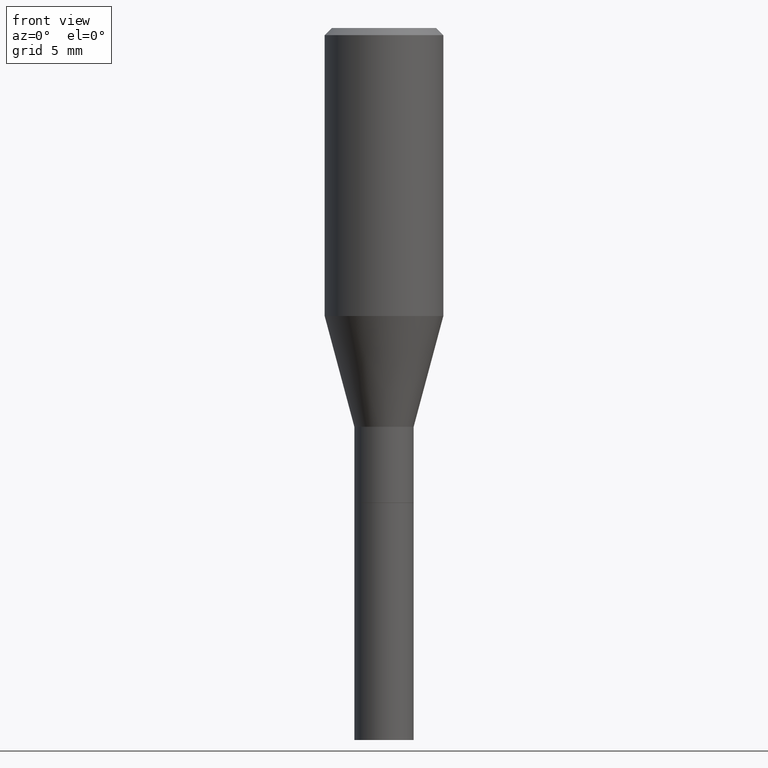
[diagram: clean part render]
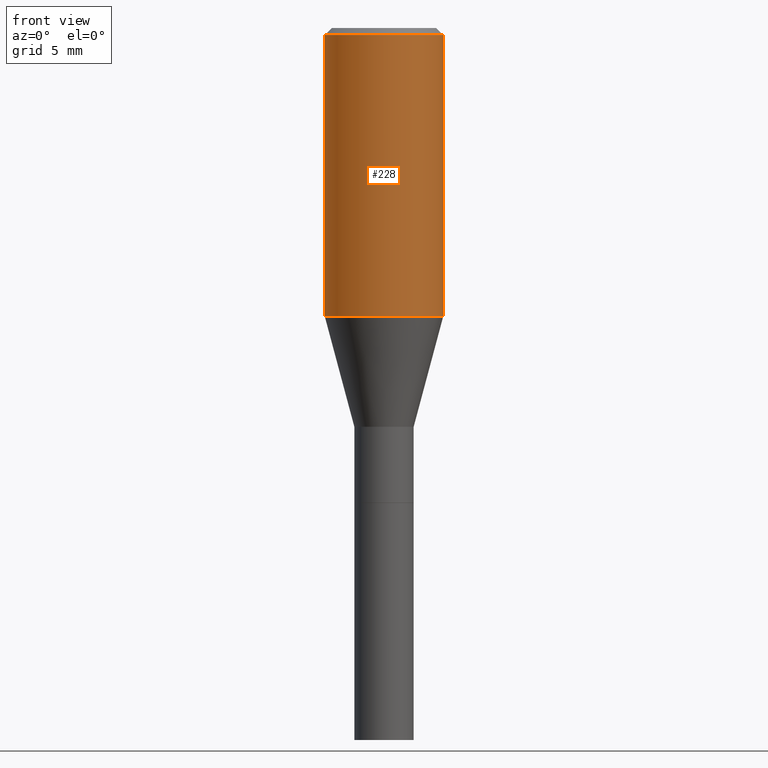
[diagram: same view with one face highlighted and labeled with its STEP entity id]
A machine part, front view. The second image highlights one B-rep face of the part: STEP entity #228.
In plain terms, the highlighted cylindrical surface (partial cylindrical patch) has radius 3.175 mm, axis along (-0, 0, 1).
Its self-contained STEP definition (entity closure, byte-faithful):
#11 = VERTEX_POINT ( 'NONE', #260 ) ;
#20 = CARTESIAN_POINT ( 'NONE',  ( -0.1250000000000000000, 8.881784197001252323E-16, -6.148668862818632227E-30 ) ) ;
#27 = DIRECTION ( 'NONE',  ( -2.445468806185136877E-29, 3.491481338843145188E-15, 1.000000000000000000 ) ) ;
#34 = DIRECTION ( 'NONE',  ( -2.445468806185136597E-29, 3.491481338843145583E-15, 1.000000000000000000 ) ) ;
#48 = CARTESIAN_POINT ( 'NONE',  ( 0.1250000000000000000, -9.252425547934304180E-16, -0.01499999999999999944 ) ) ;
#49 = VERTEX_POINT ( 'NONE', #48 ) ;
#59 = DIRECTION ( 'NONE',  ( 1.000000000000000000, -6.982962677686266711E-15, 0.000000000000000000 ) ) ;
#62 = CARTESIAN_POINT ( 'NONE',  ( 0.1250000000000000000, -8.728703347107833388E-16, 6.095220969744919741E-30 ) ) ;
#72 = FACE_OUTER_BOUND ( 'NONE', #199, .T. ) ;
#73 = ORIENTED_EDGE ( 'NONE', *, *, #129, .T. ) ;
#109 = DIRECTION ( 'NONE',  ( 1.000000000000000000, -6.982962677686266711E-15, 0.000000000000000000 ) ) ;
#116 = VECTOR ( 'NONE', #125, 39.37007874015748143 ) ;
#125 = DIRECTION ( 'NONE',  ( -2.445468806185136877E-29, 3.491481338843145188E-15, 1.000000000000000000 ) ) ;
#129 = EDGE_CURVE ( 'NONE', #414, #49, #168, .T. ) ;
#135 = CARTESIAN_POINT ( 'NONE',  ( 3.668203209277705088E-31, -5.237222008264718399E-17, -0.01499999999999999944 ) ) ;
#139 = CIRCLE ( 'NONE', #343, 0.1250000000000000000 ) ;
#168 = LINE ( 'NONE', #62, #171 ) ;
#171 = VECTOR ( 'NONE', #27, 39.37007874015748143 ) ;
#179 = EDGE_CURVE ( 'NONE', #321, #414, #139, .T. ) ;
#185 = AXIS2_PLACEMENT_3D ( 'NONE', #135, #411, #59 ) ;
#199 = EDGE_LOOP ( 'NONE', ( #464, #313, #73, #398 ) ) ;
#205 = LINE ( 'NONE', #20, #116 ) ;
#207 = CARTESIAN_POINT ( 'NONE',  ( 0.1250000000000000000, -2.991315549948951109E-15, -0.6067468245269458382 ) ) ;
#214 = CARTESIAN_POINT ( 'NONE',  ( 1.483780432632532673E-29, -2.118445215238167770E-15, -0.6067468245269458382 ) ) ;
#215 = CARTESIAN_POINT ( 'NONE',  ( 0.000000000000000000, 0.000000000000000000, 0.000000000000000000 ) ) ;
#216 = DIRECTION ( 'NONE',  ( -2.445468806185136597E-29, 3.491481338843145583E-15, 1.000000000000000000 ) ) ;
#228 = ADVANCED_FACE ( 'NONE', ( #72 ), #380, .T. ) ;
#236 = CARTESIAN_POINT ( 'NONE',  ( -0.1250000000000000000, -1.230266795538042735E-15, -0.6067468245269458382 ) ) ;
#260 = CARTESIAN_POINT ( 'NONE',  ( -0.1250000000000000000, -1.972302979602822908E-16, -0.01499999999999999944 ) ) ;
#298 = AXIS2_PLACEMENT_3D ( 'NONE', #215, #34, #350 ) ;
#313 = ORIENTED_EDGE ( 'NONE', *, *, #179, .T. ) ;
#321 = VERTEX_POINT ( 'NONE', #236 ) ;
#343 = AXIS2_PLACEMENT_3D ( 'NONE', #214, #216, #109 ) ;
#350 = DIRECTION ( 'NONE',  ( 1.000000000000000000, -6.982962677686266711E-15, 4.876176775795935793E-29 ) ) ;
#351 = CIRCLE ( 'NONE', #185, 0.1250000000000000000 ) ;
#380 = CYLINDRICAL_SURFACE ( 'NONE', #298, 0.1250000000000000000 ) ;
#398 = ORIENTED_EDGE ( 'NONE', *, *, #416, .F. ) ;
#411 = DIRECTION ( 'NONE',  ( -2.445468806185136597E-29, 3.491481338843145583E-15, 1.000000000000000000 ) ) ;
#414 = VERTEX_POINT ( 'NONE', #207 ) ;
#416 = EDGE_CURVE ( 'NONE', #11, #49, #351, .T. ) ;
#461 = EDGE_CURVE ( 'NONE', #321, #11, #205, .T. ) ;
#464 = ORIENTED_EDGE ( 'NONE', *, *, #461, .F. ) ;